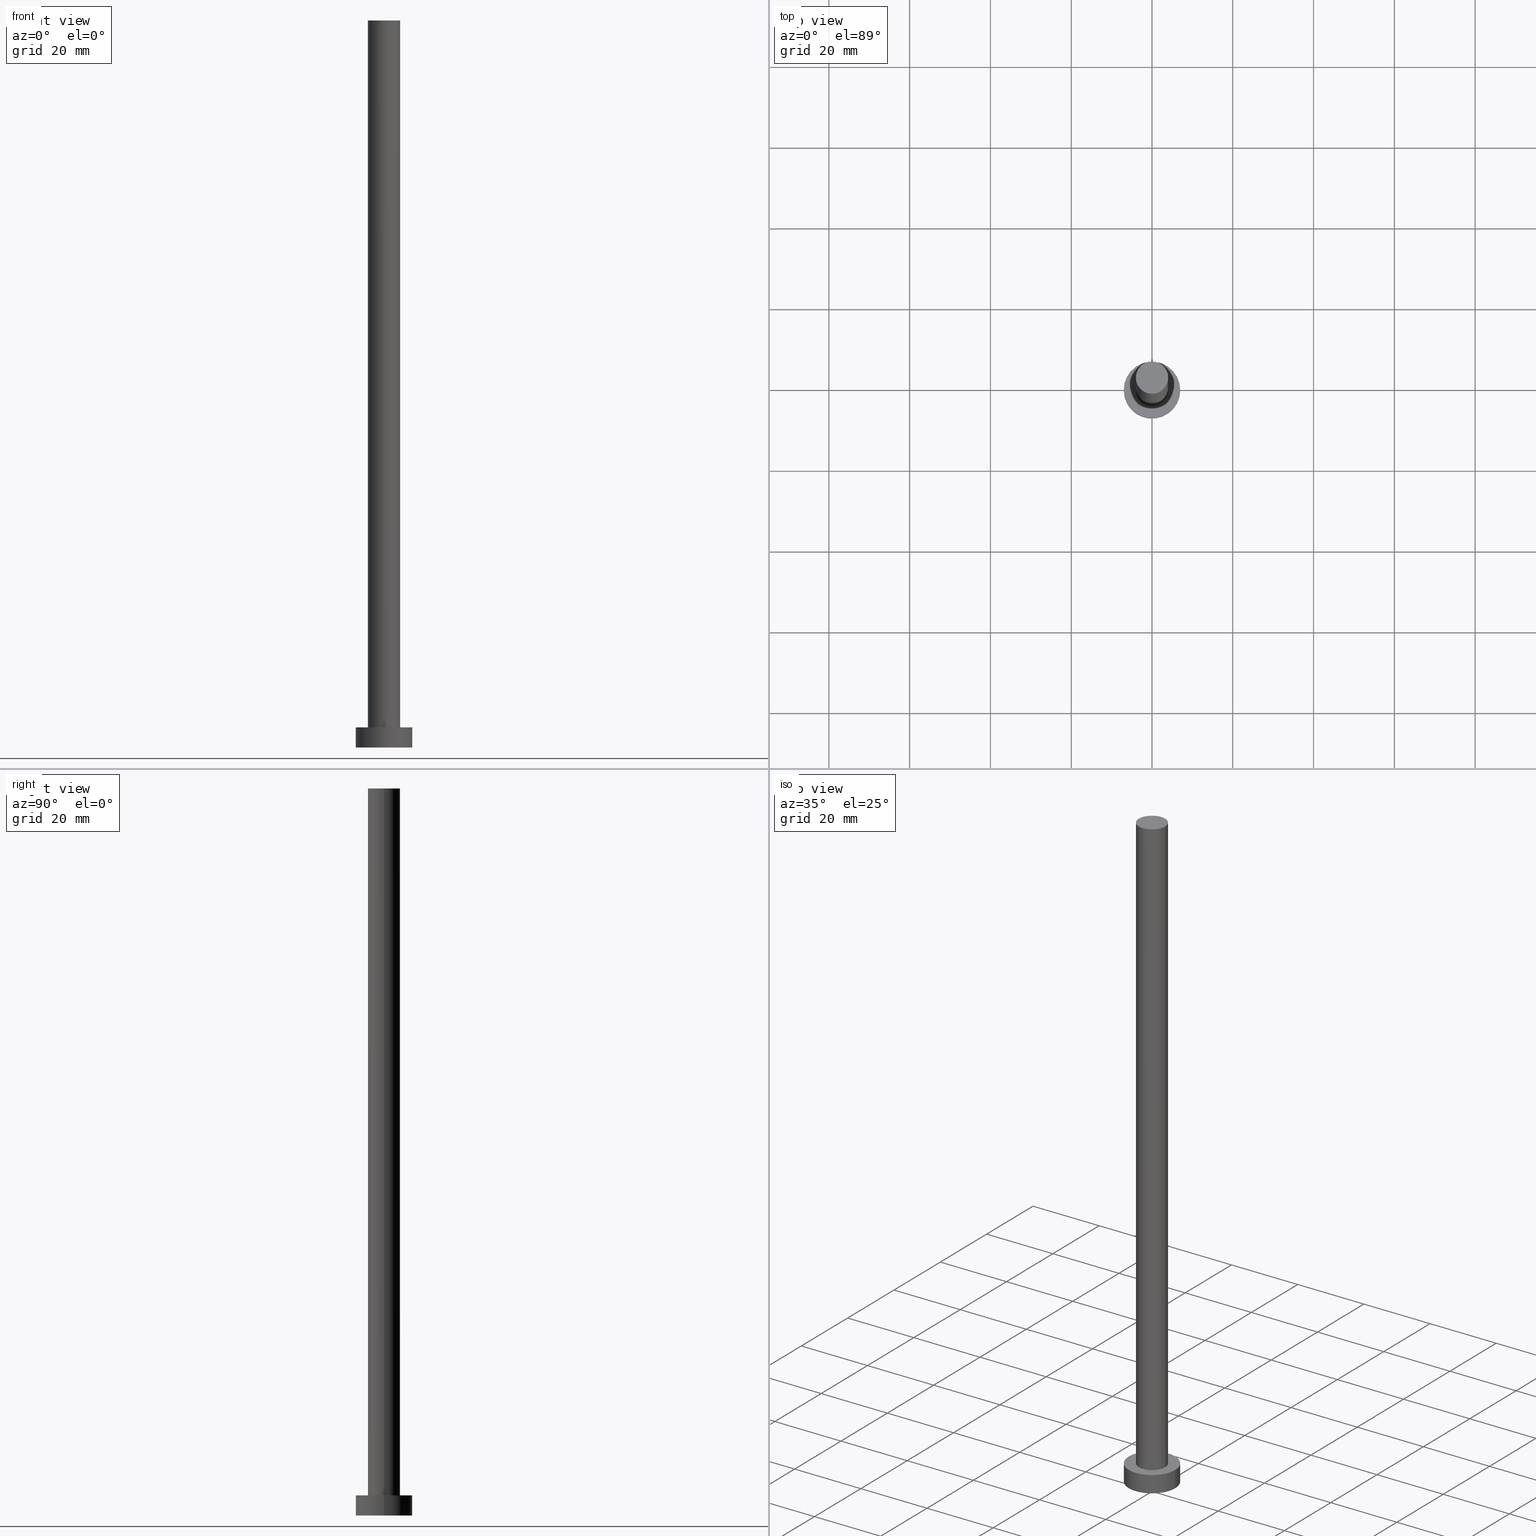
[diagram: canonical four-view strip — front | top / right | iso, engineering-drawing reading convention]
A machine part, canonical four-view strip (front | top / right | iso — engineering-drawing reading convention). The complete STEP part file that produces these views, byte-faithful:
ISO-10303-21;
HEADER;
FILE_DESCRIPTION (( 'STEP AP203' ),
    '1' );
FILE_NAME ('4502.STEP',
    '2023-04-18T09:42:35',
    ( '' ),
    ( '' ),
    'SwSTEP 2.0',
    'SolidWorks 2019',
    '' );
FILE_SCHEMA (( 'CONFIG_CONTROL_DESIGN' ));
ENDSEC;

DATA;
#1 = ORIENTED_EDGE ( 'NONE', *, *, #91, .T. ) ;
#2 = ORIENTED_EDGE ( 'NONE', *, *, #146, .T. ) ;
#3 = PRODUCT ( '4502', '4502', '', ( #208 ) ) ;
#4 = CYLINDRICAL_SURFACE ( 'NONE', #80, 4.000000000000000000 ) ;
#5 = DIRECTION ( 'NONE',  ( 0.000000000000000000, 0.000000000000000000, 1.000000000000000000 ) ) ;
#6 = DIRECTION ( 'NONE',  ( 0.000000000000000000, 0.000000000000000000, 1.000000000000000000 ) ) ;
#7 = CIRCLE ( 'NONE', #38, 4.000000000000000000 ) ;
#8 = DIRECTION ( 'NONE',  ( 0.000000000000000000, 0.000000000000000000, 1.000000000000000000 ) ) ;
#9 = DIRECTION ( 'NONE',  ( 1.000000000000000000, 0.000000000000000000, 0.000000000000000000 ) ) ;
#10 = EDGE_CURVE ( 'NONE', #231, #213, #184, .T. ) ;
#11 = PERSON_AND_ORGANIZATION ( #247, #30 ) ;
#12 = APPROVAL_ROLE ( '' ) ;
#13 = CARTESIAN_POINT ( 'NONE',  ( 0.000000000000000000, 0.000000000000000000, 0.000000000000000000 ) ) ;
#14 = ADVANCED_FACE ( 'NONE', ( #117, #198 ), #41, .T. ) ;
#15 = APPROVAL_STATUS ( 'not_yet_approved' ) ;
#16 = CIRCLE ( 'NONE', #242, 7.000000000000000000 ) ;
#17 = APPROVAL_ROLE ( '' ) ;
#18 = ORIENTED_EDGE ( 'NONE', *, *, #27, .T. ) ;
#19 = AXIS2_PLACEMENT_3D ( 'NONE', #88, #29, #9 ) ;
#20 = ORIENTED_EDGE ( 'NONE', *, *, #64, .T. ) ;
#21 = ORIENTED_EDGE ( 'NONE', *, *, #22, .F. ) ;
#22 = EDGE_CURVE ( 'NONE', #179, #231, #189, .T. ) ;
#23 = MANIFOLD_SOLID_BREP ( 'P�idat vysunut�m3', #103 ) ;
#24 = APPROVAL_PERSON_ORGANIZATION ( #157, #228, #17 ) ;
#25 = CARTESIAN_POINT ( 'NONE',  ( 0.000000000000000000, 0.000000000000000000, 180.0000000000000000 ) ) ;
#26 = LINE ( 'NONE', #186, #123 ) ;
#27 = EDGE_CURVE ( 'NONE', #102, #213, #109, .T. ) ;
#28 = FACE_OUTER_BOUND ( 'NONE', #197, .T. ) ;
#29 = DIRECTION ( 'NONE',  ( 0.000000000000000000, 0.000000000000000000, 1.000000000000000000 ) ) ;
#30 = ORGANIZATION ( 'NEUR�EN�', 'NEUR�EN�', '' ) ;
#31 = DESIGN_CONTEXT ( 'detailed design', #222, 'design' ) ;
#32 = CARTESIAN_POINT ( 'NONE',  ( 7.000000000000000000, 8.572527594031473190E-16, 0.000000000000000000 ) ) ;
#33 = PERSON_AND_ORGANIZATION ( #247, #30 ) ;
#34 = CIRCLE ( 'NONE', #167, 4.000000000000000000 ) ;
#35 = CARTESIAN_POINT ( 'NONE',  ( -7.000000000000000000, 0.000000000000000000, 0.000000000000000000 ) ) ;
#36 = DATE_AND_TIME ( #155, #61 ) ;
#37 = PERSON_AND_ORGANIZATION ( #247, #30 ) ;
#38 = AXIS2_PLACEMENT_3D ( 'NONE', #127, #5, #244 ) ;
#39 = CC_DESIGN_PERSON_AND_ORGANIZATION_ASSIGNMENT ( #37, #94, ( #163 ) ) ;
#40 = ORIENTED_EDGE ( 'NONE', *, *, #69, .T. ) ;
#41 = PLANE ( 'NONE',  #232 ) ;
#42 = DIRECTION ( 'NONE',  ( 0.000000000000000000, 0.000000000000000000, 1.000000000000000000 ) ) ;
#43 = DIRECTION ( 'NONE',  ( 0.000000000000000000, 0.000000000000000000, 1.000000000000000000 ) ) ;
#44 = AXIS2_PLACEMENT_3D ( 'NONE', #241, #68, #203 ) ;
#45 = EDGE_CURVE ( 'NONE', #55, #196, #188, .T. ) ;
#46 = PLANE ( 'NONE',  #209 ) ;
#47 = CARTESIAN_POINT ( 'NONE',  ( 0.000000000000000000, 0.000000000000000000, 0.000000000000000000 ) ) ;
#48 = DIRECTION ( 'NONE',  ( 1.000000000000000000, 0.000000000000000000, -0.000000000000000000 ) ) ;
#49 = DIRECTION ( 'NONE',  ( 0.000000000000000000, 0.000000000000000000, 1.000000000000000000 ) ) ;
#50 = APPROVAL_ROLE ( '' ) ;
#51 = PERSON_AND_ORGANIZATION ( #247, #30 ) ;
#52 = CIRCLE ( 'NONE', #44, 7.000000000000000000 ) ;
#53 = APPROVAL_DATE_TIME ( #251, #130 ) ;
#54 = ADVANCED_FACE ( 'NONE', ( #206 ), #221, .T. ) ;
#55 = VERTEX_POINT ( 'NONE', #111 ) ;
#56 = AXIS2_PLACEMENT_3D ( 'NONE', #65, #43, #152 ) ;
#57 = ORIENTED_EDGE ( 'NONE', *, *, #27, .F. ) ;
#58 = ORIENTED_EDGE ( 'NONE', *, *, #192, .F. ) ;
#59 = PRODUCT_DEFINITION_SHAPE ( 'NONE', 'NONE',  #182 ) ;
#60 = ORIENTED_EDGE ( 'NONE', *, *, #69, .F. ) ;
#61 = LOCAL_TIME ( 11, 42, 35.00000000000000000, #74 ) ;
#62 = CARTESIAN_POINT ( 'NONE',  ( 0.000000000000000000, 0.000000000000000000, 5.000000000000000000 ) ) ;
#63 = DIRECTION ( 'NONE',  ( 1.000000000000000000, 0.000000000000000000, -0.000000000000000000 ) ) ;
#64 = EDGE_CURVE ( 'NONE', #102, #179, #7, .T. ) ;
#65 = CARTESIAN_POINT ( 'NONE',  ( 0.000000000000000000, 0.000000000000000000, 5.000000000000000000 ) ) ;
#66 = DIRECTION ( 'NONE',  ( -1.000000000000000000, 0.000000000000000000, 0.000000000000000000 ) ) ;
#67 = DIRECTION ( 'NONE',  ( -1.000000000000000000, 0.000000000000000000, 0.000000000000000000 ) ) ;
#68 = DIRECTION ( 'NONE',  ( 0.000000000000000000, 0.000000000000000000, 1.000000000000000000 ) ) ;
#69 = EDGE_CURVE ( 'NONE', #55, #158, #118, .T. ) ;
#70 =( NAMED_UNIT ( * ) SI_UNIT ( $, .STERADIAN. ) SOLID_ANGLE_UNIT ( ) );
#71 = CIRCLE ( 'NONE', #56, 4.000000000000000000 ) ;
#72 = SECURITY_CLASSIFICATION_LEVEL ( 'unclassified' ) ;
#73 = CARTESIAN_POINT ( 'NONE',  ( 0.000000000000000000, 0.000000000000000000, 180.0000000000000000 ) ) ;
#74 = COORDINATED_UNIVERSAL_TIME_OFFSET ( 1, 0, .AHEAD. ) ;
#75 = AXIS2_PLACEMENT_3D ( 'NONE', #73, #210, #112 ) ;
#76 = FACE_OUTER_BOUND ( 'NONE', #255, .T. ) ;
#77 = CC_DESIGN_DATE_AND_TIME_ASSIGNMENT ( #81, #121, ( #106 ) ) ;
#78 = DATE_AND_TIME ( #143, #180 ) ;
#79 = EDGE_LOOP ( 'NONE', ( #214, #183 ) ) ;
#80 = AXIS2_PLACEMENT_3D ( 'NONE', #150, #126, #67 ) ;
#81 = DATE_AND_TIME ( #248, #84 ) ;
#82 = ORIENTED_EDGE ( 'NONE', *, *, #64, .F. ) ;
#83 = EDGE_LOOP ( 'NONE', ( #119, #40 ) ) ;
#84 = LOCAL_TIME ( 11, 42, 35.00000000000000000, #207 ) ;
#85 = ORIENTED_EDGE ( 'NONE', *, *, #192, .T. ) ;
#86 = CC_DESIGN_PERSON_AND_ORGANIZATION_ASSIGNMENT ( #33, #212, ( #163 ) ) ;
#87 = DIRECTION ( 'NONE',  ( 0.000000000000000000, 0.000000000000000000, 1.000000000000000000 ) ) ;
#88 = CARTESIAN_POINT ( 'NONE',  ( 0.000000000000000000, 0.000000000000000000, 5.000000000000000000 ) ) ;
#89 = CIRCLE ( 'NONE', #191, 7.000000000000000000 ) ;
#90 = PLANE ( 'NONE',  #132 ) ;
#91 = EDGE_CURVE ( 'NONE', #158, #252, #26, .T. ) ;
#92 = DIRECTION ( 'NONE',  ( 1.000000000000000000, 0.000000000000000000, 0.000000000000000000 ) ) ;
#93 = ADVANCED_BREP_SHAPE_REPRESENTATION ( '4502', ( #23, #154 ), #205 ) ;
#94 = PERSON_AND_ORGANIZATION_ROLE ( 'design_supplier' ) ;
#95 = APPROVAL_DATE_TIME ( #195, #218 ) ;
#96 = VECTOR ( 'NONE', #245, 1000.000000000000000 ) ;
#97 = DIRECTION ( 'NONE',  ( 0.000000000000000000, 0.000000000000000000, 1.000000000000000000 ) ) ;
#98 = COORDINATED_UNIVERSAL_TIME_OFFSET ( 1, 0, .AHEAD. ) ;
#99 = APPROVAL_PERSON_ORGANIZATION ( #51, #130, #50 ) ;
#100 = ORIENTED_EDGE ( 'NONE', *, *, #45, .T. ) ;
#101 = SHAPE_DEFINITION_REPRESENTATION ( #59, #93 ) ;
#102 = VERTEX_POINT ( 'NONE', #240 ) ;
#103 = CLOSED_SHELL ( 'NONE', ( #233, #54, #120, #14, #140, #149, #170 ) ) ;
#104 = EDGE_CURVE ( 'NONE', #196, #252, #52, .T. ) ;
#105 = EDGE_LOOP ( 'NONE', ( #21, #82, #18, #2 ) ) ;
#106 = SECURITY_CLASSIFICATION ( '', '', #72 ) ;
#107 = FACE_OUTER_BOUND ( 'NONE', #139, .T. ) ;
#108 = DIRECTION ( 'NONE',  ( -0.000000000000000000, -0.000000000000000000, -1.000000000000000000 ) ) ;
#109 = LINE ( 'NONE', #202, #96 ) ;
#110 = FACE_OUTER_BOUND ( 'NONE', #105, .T. ) ;
#111 = CARTESIAN_POINT ( 'NONE',  ( 7.000000000000000000, 8.572527594031473190E-16, 5.000000000000000000 ) ) ;
#112 = DIRECTION ( 'NONE',  ( -1.000000000000000000, 0.000000000000000000, 0.000000000000000000 ) ) ;
#113 = APPLICATION_CONTEXT ( 'configuration controlled 3d designs of mechanical parts and assemblies' ) ;
#114 = VECTOR ( 'NONE', #108, 1000.000000000000000 ) ;
#115 = DATE_TIME_ROLE ( 'creation_date' ) ;
#116 = ORIENTED_EDGE ( 'NONE', *, *, #104, .F. ) ;
#117 = FACE_BOUND ( 'NONE', #79, .T. ) ;
#118 = CIRCLE ( 'NONE', #19, 7.000000000000000000 ) ;
#119 = ORIENTED_EDGE ( 'NONE', *, *, #174, .T. ) ;
#120 = ADVANCED_FACE ( 'NONE', ( #28 ), #187, .T. ) ;
#121 = DATE_TIME_ROLE ( 'classification_date' ) ;
#122 = CARTESIAN_POINT ( 'NONE',  ( 4.000000000000000000, 4.898587196589412829E-16, 180.0000000000000000 ) ) ;
#123 = VECTOR ( 'NONE', #204, 1000.000000000000000 ) ;
#124 = DIRECTION ( 'NONE',  ( 1.000000000000000000, 0.000000000000000000, 0.000000000000000000 ) ) ;
#125 = UNCERTAINTY_MEASURE_WITH_UNIT (LENGTH_MEASURE( 1.000000000000000082E-05 ), #211, 'distance_accuracy_value', 'NONE');
#126 = DIRECTION ( 'NONE',  ( -0.000000000000000000, -0.000000000000000000, -1.000000000000000000 ) ) ;
#127 = CARTESIAN_POINT ( 'NONE',  ( 0.000000000000000000, 0.000000000000000000, 180.0000000000000000 ) ) ;
#128 = LOCAL_TIME ( 11, 42, 35.00000000000000000, #98 ) ;
#129 = DIRECTION ( 'NONE',  ( 0.000000000000000000, 0.000000000000000000, 1.000000000000000000 ) ) ;
#130 = APPROVAL ( #15, 'NEUR�EN�' ) ;
#131 = PERSON_AND_ORGANIZATION_ROLE ( 'classification_officer' ) ;
#132 = AXIS2_PLACEMENT_3D ( 'NONE', #185, #49, #48 ) ;
#133 = APPROVAL_STATUS ( 'not_yet_approved' ) ;
#134 = AXIS2_PLACEMENT_3D ( 'NONE', #159, #234, #144 ) ;
#135 = PERSON_AND_ORGANIZATION_ROLE ( 'design_owner' ) ;
#136 = CC_DESIGN_PERSON_AND_ORGANIZATION_ASSIGNMENT ( #171, #131, ( #106 ) ) ;
#137 = CARTESIAN_POINT ( 'NONE',  ( 4.000000000000000000, 4.898587196589412829E-16, 5.000000000000000000 ) ) ;
#138 = VECTOR ( 'NONE', #166, 1000.000000000000000 ) ;
#139 = EDGE_LOOP ( 'NONE', ( #58, #116 ) ) ;
#140 = ADVANCED_FACE ( 'NONE', ( #107 ), #46, .F. ) ;
#141 = EDGE_LOOP ( 'NONE', ( #20, #235 ) ) ;
#142 = ORIENTED_EDGE ( 'NONE', *, *, #10, .T. ) ;
#143 = CALENDAR_DATE ( 2023, 18, 4 ) ;
#144 = DIRECTION ( 'NONE',  ( 1.000000000000000000, 0.000000000000000000, 0.000000000000000000 ) ) ;
#145 = APPROVAL_DATE_TIME ( #78, #228 ) ;
#146 = EDGE_CURVE ( 'NONE', #213, #231, #71, .T. ) ;
#147 = DIRECTION ( 'NONE',  ( -0.000000000000000000, -0.000000000000000000, -1.000000000000000000 ) ) ;
#148 = CARTESIAN_POINT ( 'NONE',  ( -7.000000000000000000, 0.000000000000000000, 5.000000000000000000 ) ) ;
#149 = ADVANCED_FACE ( 'NONE', ( #110 ), #4, .T. ) ;
#150 = CARTESIAN_POINT ( 'NONE',  ( 0.000000000000000000, 0.000000000000000000, 180.0000000000000000 ) ) ;
#151 = FACE_OUTER_BOUND ( 'NONE', #141, .T. ) ;
#152 = DIRECTION ( 'NONE',  ( 1.000000000000000000, 0.000000000000000000, 0.000000000000000000 ) ) ;
#153 = PERSON_AND_ORGANIZATION ( #247, #30 ) ;
#154 = AXIS2_PLACEMENT_3D ( 'NONE', #13, #97, #173 ) ;
#155 = CALENDAR_DATE ( 2023, 18, 4 ) ;
#156 = CYLINDRICAL_SURFACE ( 'NONE', #75, 4.000000000000000000 ) ;
#157 = PERSON_AND_ORGANIZATION ( #247, #30 ) ;
#158 = VERTEX_POINT ( 'NONE', #148 ) ;
#159 = CARTESIAN_POINT ( 'NONE',  ( 0.000000000000000000, 0.000000000000000000, 5.000000000000000000 ) ) ;
#160 = ORIENTED_EDGE ( 'NONE', *, *, #45, .F. ) ;
#161 = APPROVAL_STATUS ( 'not_yet_approved' ) ;
#162 = EDGE_LOOP ( 'NONE', ( #60, #100, #238, #254 ) ) ;
#163 = PRODUCT_DEFINITION_FORMATION_WITH_SPECIFIED_SOURCE ( 'LIBOVOLN�', '', #3, .NOT_KNOWN. ) ;
#164 = CARTESIAN_POINT ( 'NONE',  ( 0.000000000000000000, 0.000000000000000000, 5.000000000000000000 ) ) ;
#165 = CARTESIAN_POINT ( 'NONE',  ( 0.000000000000000000, 0.000000000000000000, 5.000000000000000000 ) ) ;
#166 = DIRECTION ( 'NONE',  ( -0.000000000000000000, -0.000000000000000000, -1.000000000000000000 ) ) ;
#167 = AXIS2_PLACEMENT_3D ( 'NONE', #25, #87, #194 ) ;
#168 = CARTESIAN_POINT ( 'NONE',  ( 4.000000000000000000, 4.898587196589412829E-16, 180.0000000000000000 ) ) ;
#169 = DIRECTION ( 'NONE',  ( -1.000000000000000000, 0.000000000000000000, 0.000000000000000000 ) ) ;
#170 = ADVANCED_FACE ( 'NONE', ( #151 ), #90, .T. ) ;
#171 = PERSON_AND_ORGANIZATION ( #247, #30 ) ;
#172 = AXIS2_PLACEMENT_3D ( 'NONE', #165, #147, #169 ) ;
#173 = DIRECTION ( 'NONE',  ( 1.000000000000000000, 0.000000000000000000, 0.000000000000000000 ) ) ;
#174 = EDGE_CURVE ( 'NONE', #158, #55, #16, .T. ) ;
#175 = CALENDAR_DATE ( 2023, 18, 4 ) ;
#176 = APPROVAL_PERSON_ORGANIZATION ( #11, #218, #12 ) ;
#177 = CALENDAR_DATE ( 2023, 18, 4 ) ;
#178 = CC_DESIGN_PERSON_AND_ORGANIZATION_ASSIGNMENT ( #227, #249, ( #182 ) ) ;
#179 = VERTEX_POINT ( 'NONE', #122 ) ;
#180 = LOCAL_TIME ( 11, 42, 35.00000000000000000, #215 ) ;
#181 = ORIENTED_EDGE ( 'NONE', *, *, #174, .F. ) ;
#182 = PRODUCT_DEFINITION ( 'NEZN�M�', '', #163, #31 ) ;
#183 = ORIENTED_EDGE ( 'NONE', *, *, #10, .F. ) ;
#184 = CIRCLE ( 'NONE', #134, 4.000000000000000000 ) ;
#185 = CARTESIAN_POINT ( 'NONE',  ( 0.000000000000000000, 0.000000000000000000, 180.0000000000000000 ) ) ;
#186 = CARTESIAN_POINT ( 'NONE',  ( -7.000000000000000000, 0.000000000000000000, 5.000000000000000000 ) ) ;
#187 = CYLINDRICAL_SURFACE ( 'NONE', #250, 7.000000000000000000 ) ;
#188 = LINE ( 'NONE', #223, #114 ) ;
#189 = LINE ( 'NONE', #168, #138 ) ;
#190 = APPLICATION_PROTOCOL_DEFINITION ( 'international standard', 'config_control_design', 1994, #113 ) ;
#191 = AXIS2_PLACEMENT_3D ( 'NONE', #225, #129, #124 ) ;
#192 = EDGE_CURVE ( 'NONE', #252, #196, #89, .T. ) ;
#193 =( NAMED_UNIT ( * ) PLANE_ANGLE_UNIT ( ) SI_UNIT ( $, .RADIAN. ) );
#194 = DIRECTION ( 'NONE',  ( 1.000000000000000000, 0.000000000000000000, 0.000000000000000000 ) ) ;
#195 = DATE_AND_TIME ( #175, #253 ) ;
#196 = VERTEX_POINT ( 'NONE', #32 ) ;
#197 = EDGE_LOOP ( 'NONE', ( #160, #181, #1, #85 ) ) ;
#198 = FACE_OUTER_BOUND ( 'NONE', #83, .T. ) ;
#199 = ORIENTED_EDGE ( 'NONE', *, *, #216, .F. ) ;
#200 = CARTESIAN_POINT ( 'NONE',  ( -4.000000000000000000, 0.000000000000000000, 5.000000000000000000 ) ) ;
#201 = CC_DESIGN_APPROVAL ( #228, ( #106 ) ) ;
#202 = CARTESIAN_POINT ( 'NONE',  ( -4.000000000000000000, 0.000000000000000000, 180.0000000000000000 ) ) ;
#203 = DIRECTION ( 'NONE',  ( 1.000000000000000000, 0.000000000000000000, 0.000000000000000000 ) ) ;
#204 = DIRECTION ( 'NONE',  ( -0.000000000000000000, -0.000000000000000000, -1.000000000000000000 ) ) ;
#205 =( GEOMETRIC_REPRESENTATION_CONTEXT ( 3 ) GLOBAL_UNCERTAINTY_ASSIGNED_CONTEXT ( ( #125 ) ) GLOBAL_UNIT_ASSIGNED_CONTEXT ( ( #211, #193, #70 ) ) REPRESENTATION_CONTEXT ( 'NONE', 'WORKASPACE' ) );
#206 = FACE_OUTER_BOUND ( 'NONE', #162, .T. ) ;
#207 = COORDINATED_UNIVERSAL_TIME_OFFSET ( 1, 0, .AHEAD. ) ;
#208 = MECHANICAL_CONTEXT ( 'NONE', #113, 'mechanical' ) ;
#209 = AXIS2_PLACEMENT_3D ( 'NONE', #47, #6, #239 ) ;
#210 = DIRECTION ( 'NONE',  ( -0.000000000000000000, -0.000000000000000000, -1.000000000000000000 ) ) ;
#211 =( LENGTH_UNIT ( ) NAMED_UNIT ( * ) SI_UNIT ( .MILLI., .METRE. ) );
#212 = PERSON_AND_ORGANIZATION_ROLE ( 'creator' ) ;
#213 = VERTEX_POINT ( 'NONE', #200 ) ;
#214 = ORIENTED_EDGE ( 'NONE', *, *, #146, .F. ) ;
#215 = COORDINATED_UNIVERSAL_TIME_OFFSET ( 1, 0, .AHEAD. ) ;
#216 = EDGE_CURVE ( 'NONE', #179, #102, #34, .T. ) ;
#217 = ORIENTED_EDGE ( 'NONE', *, *, #22, .T. ) ;
#218 = APPROVAL ( #133, 'NEUR�EN�' ) ;
#219 = DIRECTION ( 'NONE',  ( -0.000000000000000000, -0.000000000000000000, -1.000000000000000000 ) ) ;
#220 = CARTESIAN_POINT ( 'NONE',  ( 0.000000000000000000, 0.000000000000000000, 5.000000000000000000 ) ) ;
#221 = CYLINDRICAL_SURFACE ( 'NONE', #172, 7.000000000000000000 ) ;
#222 = APPLICATION_CONTEXT ( 'configuration controlled 3d designs of mechanical parts and assemblies' ) ;
#223 = CARTESIAN_POINT ( 'NONE',  ( 7.000000000000000000, 8.572527594031473190E-16, 5.000000000000000000 ) ) ;
#224 = CC_DESIGN_PERSON_AND_ORGANIZATION_ASSIGNMENT ( #153, #135, ( #3 ) ) ;
#225 = CARTESIAN_POINT ( 'NONE',  ( 0.000000000000000000, 0.000000000000000000, 0.000000000000000000 ) ) ;
#226 = CC_DESIGN_APPROVAL ( #130, ( #163 ) ) ;
#227 = PERSON_AND_ORGANIZATION ( #247, #30 ) ;
#228 = APPROVAL ( #161, 'NEUR�EN�' ) ;
#229 = APPLICATION_PROTOCOL_DEFINITION ( 'international standard', 'config_control_design', 1994, #222 ) ;
#230 = COORDINATED_UNIVERSAL_TIME_OFFSET ( 1, 0, .AHEAD. ) ;
#231 = VERTEX_POINT ( 'NONE', #137 ) ;
#232 = AXIS2_PLACEMENT_3D ( 'NONE', #62, #42, #63 ) ;
#233 = ADVANCED_FACE ( 'NONE', ( #76 ), #156, .T. ) ;
#234 = DIRECTION ( 'NONE',  ( 0.000000000000000000, 0.000000000000000000, 1.000000000000000000 ) ) ;
#235 = ORIENTED_EDGE ( 'NONE', *, *, #216, .T. ) ;
#236 = CC_DESIGN_APPROVAL ( #218, ( #182 ) ) ;
#237 = CC_DESIGN_SECURITY_CLASSIFICATION ( #106, ( #163 ) ) ;
#238 = ORIENTED_EDGE ( 'NONE', *, *, #104, .T. ) ;
#239 = DIRECTION ( 'NONE',  ( 1.000000000000000000, 0.000000000000000000, -0.000000000000000000 ) ) ;
#240 = CARTESIAN_POINT ( 'NONE',  ( -4.000000000000000000, 0.000000000000000000, 180.0000000000000000 ) ) ;
#241 = CARTESIAN_POINT ( 'NONE',  ( 0.000000000000000000, 0.000000000000000000, 0.000000000000000000 ) ) ;
#242 = AXIS2_PLACEMENT_3D ( 'NONE', #220, #8, #92 ) ;
#243 = CC_DESIGN_DATE_AND_TIME_ASSIGNMENT ( #36, #115, ( #182 ) ) ;
#244 = DIRECTION ( 'NONE',  ( 1.000000000000000000, 0.000000000000000000, 0.000000000000000000 ) ) ;
#245 = DIRECTION ( 'NONE',  ( -0.000000000000000000, -0.000000000000000000, -1.000000000000000000 ) ) ;
#246 = PRODUCT_RELATED_PRODUCT_CATEGORY ( 'detail', '', ( #3 ) ) ;
#247 = PERSON ( 'NEUR�EN�', 'NEUR�EN�', 'NEUR�EN�', ('NEUR�EN�'), ('NEUR�EN�'), ('NEUR�EN�') ) ;
#248 = CALENDAR_DATE ( 2023, 18, 4 ) ;
#249 = PERSON_AND_ORGANIZATION_ROLE ( 'creator' ) ;
#250 = AXIS2_PLACEMENT_3D ( 'NONE', #164, #219, #66 ) ;
#251 = DATE_AND_TIME ( #177, #128 ) ;
#252 = VERTEX_POINT ( 'NONE', #35 ) ;
#253 = LOCAL_TIME ( 11, 42, 35.00000000000000000, #230 ) ;
#254 = ORIENTED_EDGE ( 'NONE', *, *, #91, .F. ) ;
#255 = EDGE_LOOP ( 'NONE', ( #199, #217, #142, #57 ) ) ;
ENDSEC;
END-ISO-10303-21;
